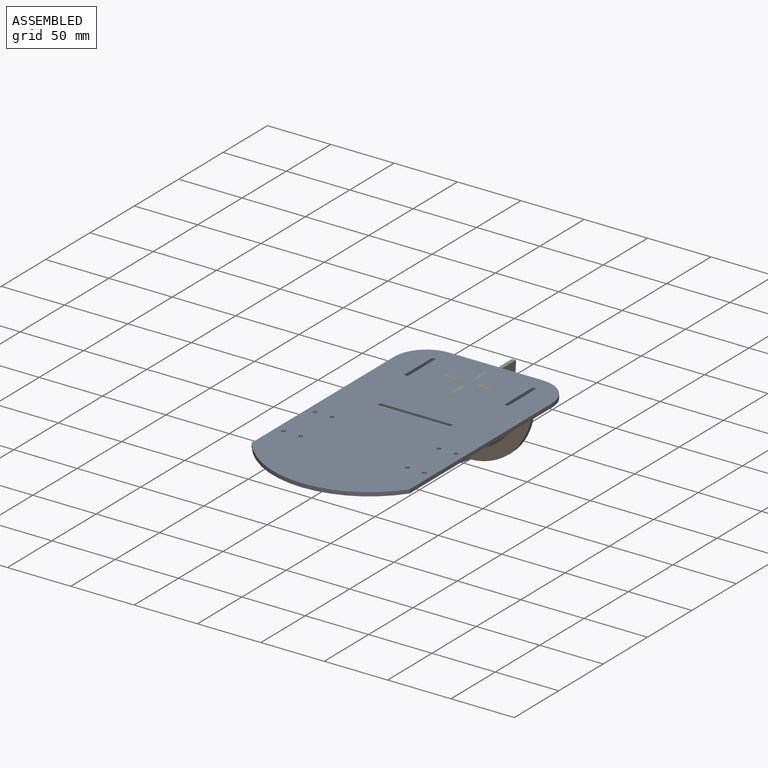
[diagram: assembled view]
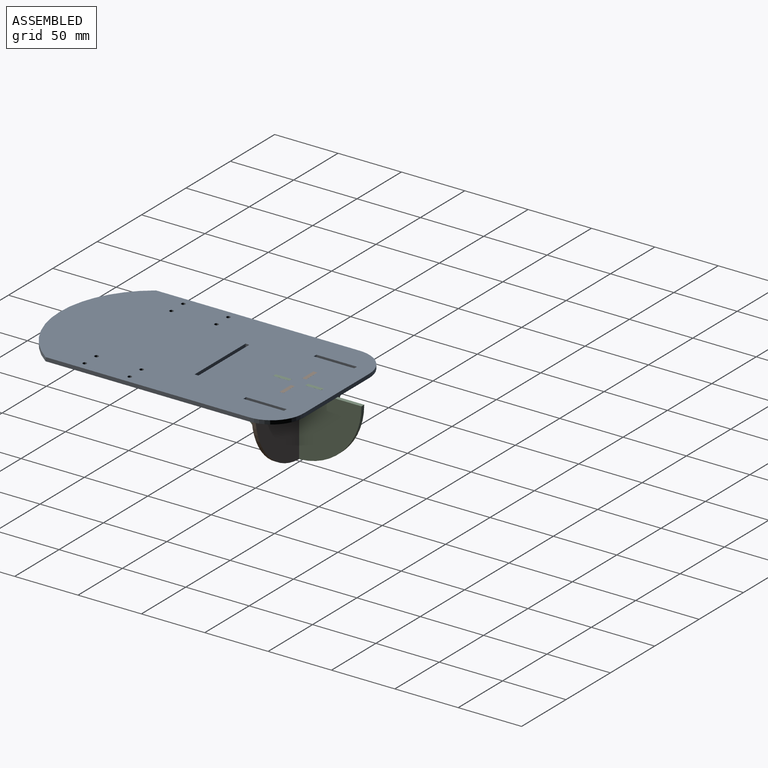
[diagram: assembled view, second angle]
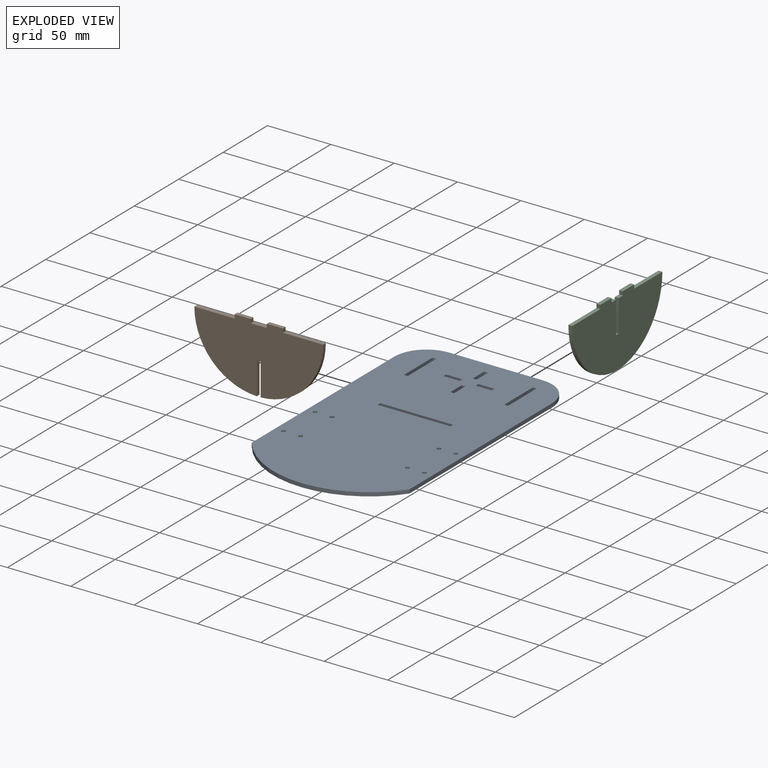
[diagram: exploded view]
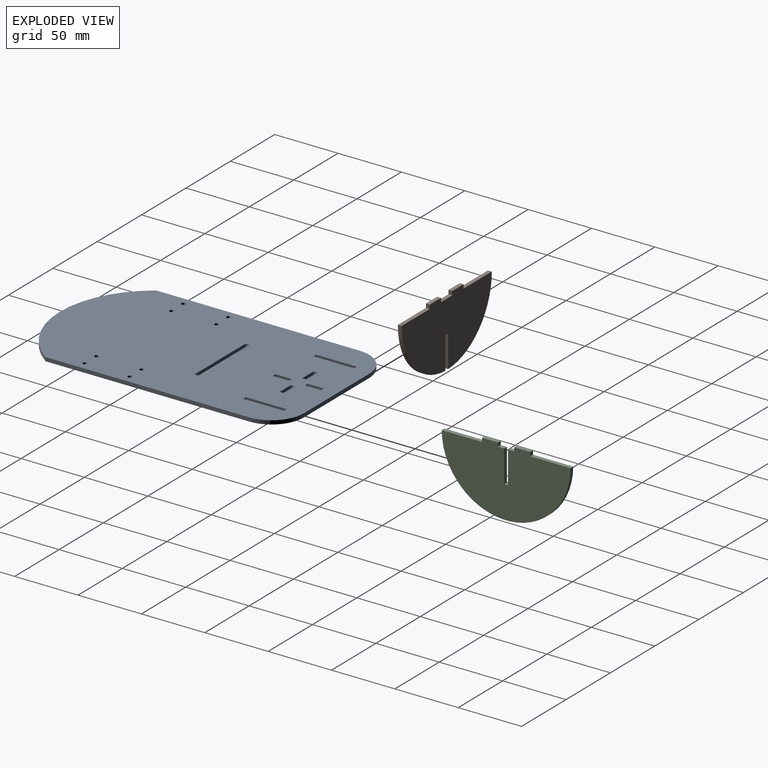
[diagram: exploded view, second angle]
ASSEMBLY  parts=3 mates=2
PART A: 44 faces, bbox 124.5x218.3x3 mm
  f0: plane 32x3mm, normal (-1,0,0), area 95.9mm2, adj f1,f27,f42,f43
  f1: plane 3.05x3mm, normal (0,1,0), area 9.1mm2, adj f0,f2,f42,f43
  f2: plane 32x3mm, normal (1,0,0), area 95.9mm2, adj f1,f27,f42,f43
  f3: plane 73.66x3mm, normal (0,1,0), area 220.8mm2, adj f4,f28,f42,f43
  f4: cylinder r=25.4mm len=25.4mm, axis (0,0,-1), area 119.6mm2, adj f3,f5,f42,f43
  f5: plane 160.64x3mm, normal (-1,0,0), area 481.5mm2, adj f4,f6,f42,f43
  f6: cylinder r=76.2mm len=124.46mm, axis (0,0,-1), area 436.5mm2, adj f5,f7,f42,f43
  f7: plane 160.64x3mm, normal (1,0,0), area 481.5mm2, adj f6,f28,f42,f43
  f8: plane 3.05x3mm, normal (0,1,0), area 9.1mm2, adj f9,f29,f42,f43
  f9: plane 32x3mm, normal (1,0,0), area 95.9mm2, adj f8,f10,f42,f43
  f10: plane 3.05x3mm, normal (0,-1,0), area 9.1mm2, adj f9,f29,f42,f43
  f11: plane 57.4x3mm, normal (0,1,0), area 172.1mm2, adj f12,f30,f42,f43
  f12: plane 3.05x3mm, normal (1,0,0), area 9.1mm2, adj f11,f13,f42,f43
  f13: plane 57.4x3mm, normal (0,-1,0), area 172.1mm2, adj f12,f30,f42,f43
  f14: plane 12.7x3mm, normal (0,1,0), area 38.1mm2, adj f15,f31,f42,f43
  f15: plane 3.05x3mm, normal (1,0,0), area 9.1mm2, adj f14,f16,f42,f43
  f16: plane 12.7x3mm, normal (0,-1,0), area 38.1mm2, adj f15,f31,f42,f43
  f17: plane 3.05x3mm, normal (1,0,0), area 9.1mm2, adj f18,f32,f42,f43
  f18: plane 12.7x3mm, normal (0,-1,0), area 38.1mm2, adj f17,f19,f42,f43
  f19: plane 3.05x3mm, normal (-1,0,0), area 9.1mm2, adj f18,f32,f42,f43
  f20: plane 3.05x3mm, normal (0,1,0), area 9.1mm2, adj f21,f33,f42,f43
  f21: plane 12.7x3mm, normal (1,0,0), area 38.1mm2, adj f20,f22,f42,f43
  f22: plane 3.05x3mm, normal (0,-1,0), area 9.1mm2, adj f21,f33,f42,f43
  f23: plane 12.7x3mm, normal (-1,0,0), area 38.1mm2, adj f24,f34,f42,f43
  f24: plane 3.05x3mm, normal (0,1,0), area 9.1mm2, adj f23,f25,f42,f43
  f25: plane 12.7x3mm, normal (1,0,0), area 38.1mm2, adj f24,f34,f42,f43
  f26: cylinder r=1.59mm len=3.18mm, axis (0,0,-1), area 29.9mm2, adj f42,f43
  f27: plane 3.05x3mm, normal (0,-1,0), area 9.1mm2, adj f0,f2,f42,f43
  f28: cylinder r=25.4mm len=25.4mm, axis (0,0,-1), area 119.6mm2, adj f3,f7,f42,f43
  f29: plane 32x3mm, normal (-1,0,0), area 95.9mm2, adj f8,f10,f42,f43
  f30: plane 3.05x3mm, normal (-1,0,0), area 9.1mm2, adj f11,f13,f42,f43
  f31: plane 3.05x3mm, normal (-1,0,0), area 9.1mm2, adj f14,f16,f42,f43
  f32: plane 12.7x3mm, normal (0,1,0), area 38.1mm2, adj f17,f19,f42,f43
  f33: plane 12.7x3mm, normal (-1,0,0), area 38.1mm2, adj f20,f22,f42,f43
  f34: plane 3.05x3mm, normal (0,-1,0), area 9.1mm2, adj f23,f25,f42,f43
  f35: cylinder r=1.59mm len=3.18mm, axis (0,0,-1), area 29.9mm2, adj f42,f43
  f36: cylinder r=1.59mm len=3.18mm, axis (0,0,-1), area 29.9mm2, adj f42,f43
  f37: cylinder r=1.59mm len=3.18mm, axis (0,0,-1), area 29.9mm2, adj f42,f43
  f38: cylinder r=1.59mm len=3.18mm, axis (0,0,-1), area 29.9mm2, adj f42,f43
  f39: cylinder r=1.59mm len=3.18mm, axis (0,0,-1), area 29.9mm2, adj f42,f43
  f40: cylinder r=1.59mm len=3.18mm, axis (0,0,-1), area 29.9mm2, adj f42,f43
  f41: cylinder r=1.59mm len=3.18mm, axis (0,0,-1), area 29.9mm2, adj f42,f43
  f42: plane 218.26x124.46mm, normal (0,0,1), area 25101mm2, adj f0,f1,f2,f3,f4,f5,f6,f7
  f43: plane 218.26x124.46mm, normal (0,0,-1), area 25101mm2, adj f0,f1,f2,f3,f4,f5,f6,f7
PART B: 16 faces, bbox 101.6x3x53.8 mm
  f0: plane 3.05x3.05mm, normal (1,0,0), area 9.3mm2, adj f1,f13,f14,f15
  f1: plane 12.7x3.05mm, normal (0,0,1), area 38.7mm2, adj f0,f2,f14,f15
  f2: plane 3.05x3.05mm, normal (-1,0,0), area 9.3mm2, adj f1,f3,f14,f15
  f3: plane 12.7x3.05mm, normal (0,0,1), area 38.7mm2, adj f2,f4,f14,f15
  f4: plane 3.05x3.05mm, normal (1,0,0), area 9.3mm2, adj f3,f5,f14,f15
  f5: plane 12.7x3.05mm, normal (0,0,1), area 38.7mm2, adj f4,f6,f14,f15
  f6: plane 3.05x3.05mm, normal (-1,0,0), area 9.3mm2, adj f5,f7,f14,f15
  f7: plane 31.75x3.05mm, normal (0,0,1), area 96.8mm2, adj f6,f8,f14,f15
  f8: cylinder r=50.8mm len=50.78mm, axis (0,1,0), area 238.6mm2, adj f7,f9,f14,f15
  f9: plane 25.38x3.05mm, normal (1,0,0), area 77.3mm2, adj f8,f10,f14,f15
  f10: plane 3.05x3.05mm, normal (0,0,-1), area 9.3mm2, adj f9,f11,f14,f15
  f11: plane 25.38x3.05mm, normal (-1,0,0), area 77.3mm2, adj f10,f12,f14,f15
  f12: cylinder r=50.8mm len=50.78mm, axis (0,1,0), area 238.6mm2, adj f11,f13,f14,f15
  f13: plane 31.75x3.05mm, normal (0,0,1), area 96.8mm2, adj f0,f12,f14,f15
  f14: plane 101.6x53.83mm, normal (0,-1,0), area 4053.7mm2, adj f0,f1,f2,f3,f4,f5,f6,f7
  f15: plane 101.6x53.83mm, normal (0,1,0), area 4053.7mm2, adj f0,f1,f2,f3,f4,f5,f6,f7
PART C: 16 faces, bbox 3x101.6x53.8 mm
  f0: plane 4.83x3.05mm, normal (0,0,1), area 14.7mm2, adj f1,f13,f14,f15
  f1: plane 25.4x3.05mm, normal (0,-1,0), area 77.4mm2, adj f0,f2,f14,f15
  f2: plane 3.05x3.05mm, normal (0,0,1), area 9.3mm2, adj f1,f3,f14,f15
  f3: plane 25.4x3.05mm, normal (0,1,0), area 77.4mm2, adj f2,f4,f14,f15
  f4: plane 4.83x3.05mm, normal (0,0,1), area 14.7mm2, adj f3,f5,f14,f15
  f5: plane 3.05x3.05mm, normal (0,1,0), area 9.3mm2, adj f4,f6,f14,f15
  f6: plane 12.7x3.05mm, normal (0,0,1), area 38.7mm2, adj f5,f7,f14,f15
  f7: plane 3.05x3.05mm, normal (0,-1,0), area 9.3mm2, adj f6,f8,f14,f15
  f8: plane 31.75x3.05mm, normal (0,0,1), area 96.8mm2, adj f7,f9,f14,f15
  f9: cylinder r=50.8mm len=101.6mm, axis (-1,0,0), area 486.4mm2, adj f8,f10,f14,f15
  f10: plane 31.75x3.05mm, normal (0,0,1), area 96.8mm2, adj f9,f11,f14,f15
  f11: plane 3.05x3.05mm, normal (0,1,0), area 9.3mm2, adj f10,f12,f14,f15
  f12: plane 12.7x3.05mm, normal (0,0,1), area 38.7mm2, adj f11,f13,f14,f15
  f13: plane 3.05x3.05mm, normal (0,-1,0), area 9.3mm2, adj f0,f12,f14,f15
  f14: plane 101.6x53.85mm, normal (1,0,0), area 4053.7mm2, adj f0,f1,f2,f3,f4,f5,f6,f7
  f15: plane 101.6x53.85mm, normal (-1,0,0), area 4053.7mm2, adj f0,f1,f2,f3,f4,f5,f6,f7
PLACE A t=(3.33,-10.75,28.88)mm
PLACE B t=(3.33,102.79,-21.95)mm
PLACE C t=(1.81,101.27,-21.95)mm
MATE fastened C.f13 <-> A.f20  axis (0,-1,0) through (3.33,107.62,30.38)mm
MATE fastened B.f4 <-> A.f31  axis (1,0,0) through (-3.02,101.27,30.38)mm
